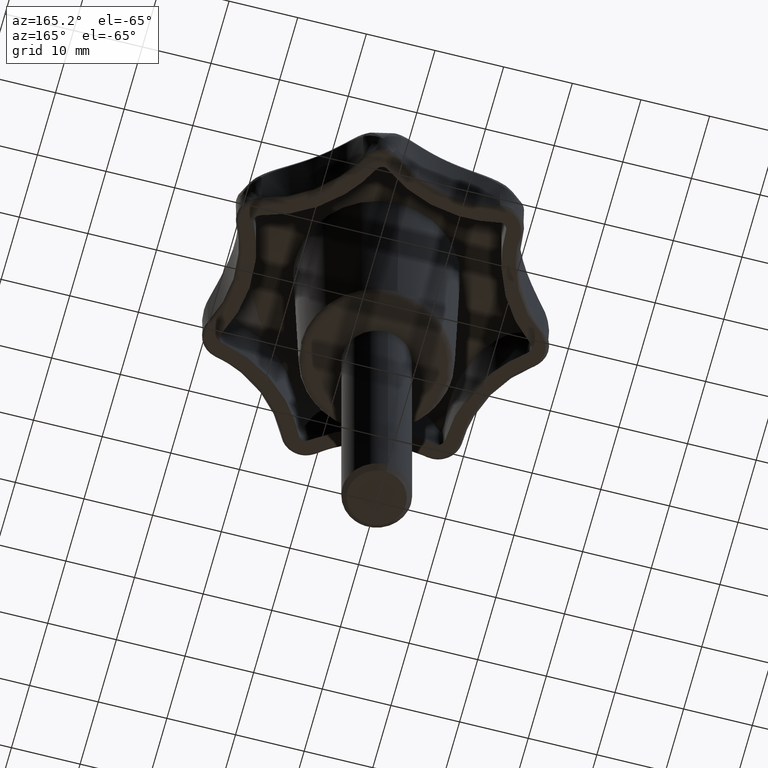
[diagram: clean part render]
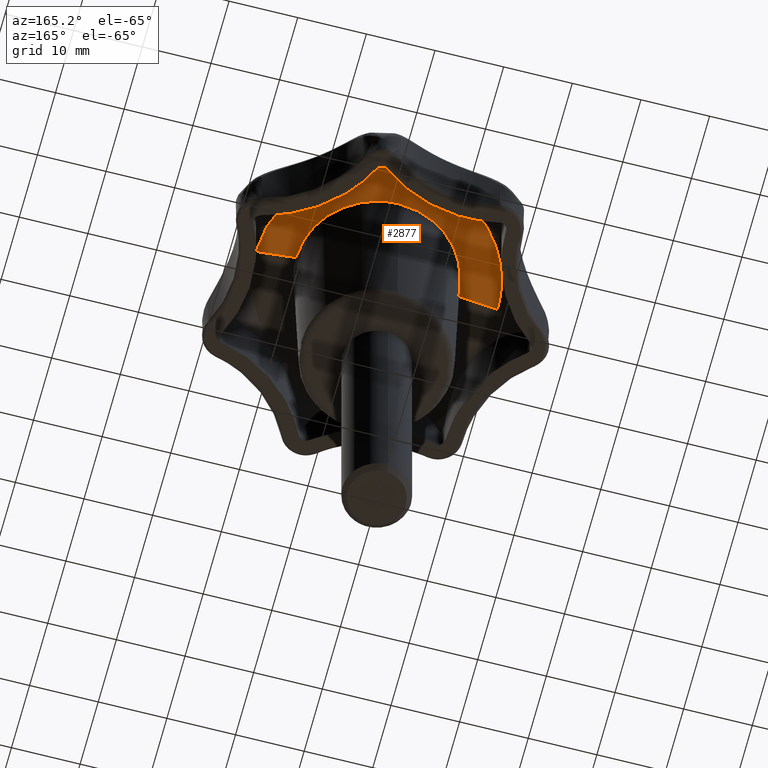
[diagram: same view with one face highlighted and labeled with its STEP entity id]
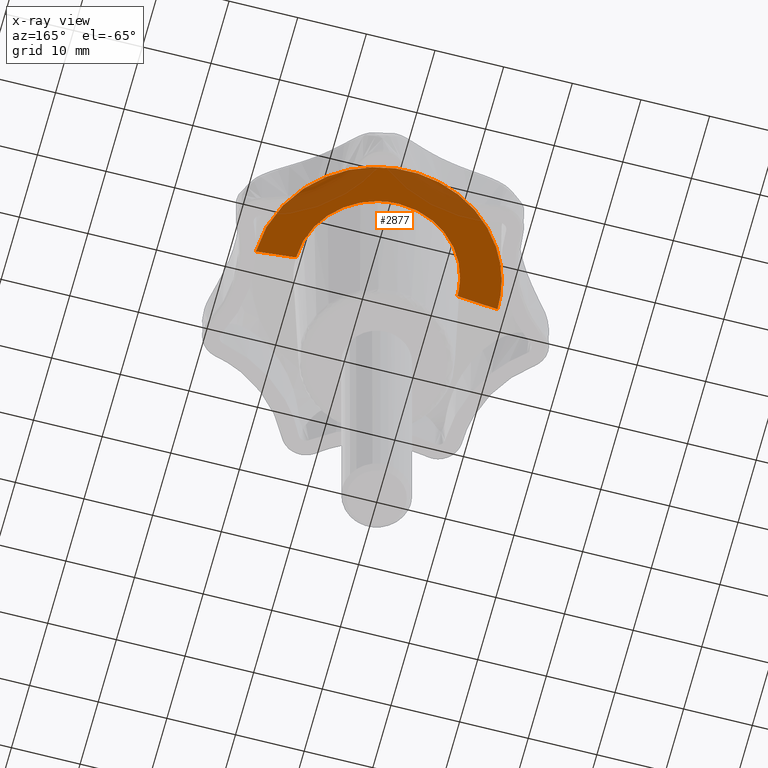
[diagram: x-ray of the same camera — body ghosted, the highlighted face saturated]
A machine part, auxiliary view. The second image highlights one B-rep face of the part: STEP entity #2877.
The next image is the same camera in x-ray: the body ghosted, the highlighted face saturated — about 29% of this face is hidden behind the body in this view.
In plain terms, the highlighted face is a freeform B-spline surface patch.
Its self-contained STEP definition (entity closure, byte-faithful):
#1056=CARTESIAN_POINT('',(-0.102533979538385,11.749729297891481,28.648124191833819));
#1057=VERTEX_POINT('',#1056);
#1063=CARTESIAN_POINT('',(11.750157794754040,0.0,28.648124470930838));
#1064=VERTEX_POINT('',#1063);
#1065=CARTESIAN_POINT('',(11.750157794754040,0.0,28.648124470930838));
#1066=CARTESIAN_POINT('',(11.750157794611022,11.750176655373723,28.648124332587464));
#1067=CARTESIAN_POINT('',(-1.989749E-010,11.750176671906820,28.648124193046218));
#1068=CARTESIAN_POINT('',(-0.051267965852437,11.750176671978963,28.648124192437368));
#1069=CARTESIAN_POINT('',(-0.102533979538385,11.749729297891479,28.648124191833816));
#1077=(BOUNDED_CURVE()B_SPLINE_CURVE(2,(#1065,#1066,#1067,#1068,#1069),.UNSPECIFIED.,.F.,.U.)B_SPLINE_CURVE_WITH_KNOTS((3,2,3),(0.500000000000000,0.750000000000000,0.751539831525140),.UNSPECIFIED.)CURVE()GEOMETRIC_REPRESENTATION_ITEM()RATIONAL_B_SPLINE_CURVE((1.0,0.707106781186547,1.0,0.998195975152686,0.996414173460028))REPRESENTATION_ITEM(''));
#1078=EDGE_CURVE('',#1064,#1057,#1077,.T.);
#1123=CARTESIAN_POINT('',(-11.750157794577399,0.0,28.648124470959232));
#1124=VERTEX_POINT('',#1123);
#1140=CARTESIAN_POINT('',(-0.102533979538385,11.749729297891479,28.648124191833816));
#1141=CARTESIAN_POINT('',(-11.750157794721675,11.648085998917605,28.648124331403327));
#1142=CARTESIAN_POINT('',(-11.750157794577399,0.0,28.648124470959232));
#1150=(BOUNDED_CURVE()B_SPLINE_CURVE(2,(#1140,#1141,#1142),.UNSPECIFIED.,.F.,.U.)B_SPLINE_CURVE_WITH_KNOTS((3,3),(0.751539831525140,1.0),.UNSPECIFIED.)CURVE()GEOMETRIC_REPRESENTATION_ITEM()RATIONAL_B_SPLINE_CURVE((0.996414173460028,0.708910806033862,1.0))REPRESENTATION_ITEM(''));
#1151=EDGE_CURVE('',#1057,#1124,#1150,.T.);
#2724=CARTESIAN_POINT('',(17.596958874370909,0.0,27.439747131504468));
#2725=VERTEX_POINT('',#2724);
#2726=CARTESIAN_POINT('',(17.596958874370909,0.0,27.439747131504465));
#2727=CARTESIAN_POINT('',(14.700417960583382,0.0,28.173897598160814));
#2728=CARTESIAN_POINT('',(11.750157794754042,0.0,28.648124470930835));
#2736=(BOUNDED_CURVE()B_SPLINE_CURVE(2,(#2726,#2727,#2728),.UNSPECIFIED.,.F.,.U.)B_SPLINE_CURVE_WITH_KNOTS((3,3),(0.915237493933738,0.943245607807053),.UNSPECIFIED.)CURVE()GEOMETRIC_REPRESENTATION_ITEM()RATIONAL_B_SPLINE_CURVE((0.948167060949897,0.953810472415407,0.961383716380284))REPRESENTATION_ITEM(''));
#2737=EDGE_CURVE('',#2725,#1064,#2736,.T.);
#2754=CARTESIAN_POINT('',(-17.596958874649530,0.0,27.439747131433869));
#2755=VERTEX_POINT('',#2754);
#2782=CARTESIAN_POINT('',(-17.596958874649534,0.0,27.439747131433869));
#2783=CARTESIAN_POINT('',(-14.700417960638672,0.0,28.173897598159996));
#2784=CARTESIAN_POINT('',(-11.750157794577399,0.0,28.648124470959218));
#2792=(BOUNDED_CURVE()B_SPLINE_CURVE(2,(#2782,#2783,#2784),.UNSPECIFIED.,.F.,.U.)B_SPLINE_CURVE_WITH_KNOTS((3,3),(0.915237493932399,0.943245607807898),.UNSPECIFIED.)CURVE()GEOMETRIC_REPRESENTATION_ITEM()RATIONAL_B_SPLINE_CURVE((0.948167060949357,0.953810472415215,0.961383716380741))REPRESENTATION_ITEM(''));
#2793=EDGE_CURVE('',#2755,#1124,#2792,.T.);
#2800=CARTESIAN_POINT('',(-17.887967260378893,-0.500089208538962,27.365296419266880));
#2801=CARTESIAN_POINT('',(-14.705365776727396,-0.411114053682798,28.187104801121599));
#2802=CARTESIAN_POINT('',(-11.457765379342986,-0.320321741245147,28.694463529376112));
#2803=CARTESIAN_POINT('',(-17.887967260378904,-0.251500801443757,27.365296419266890));
#2804=CARTESIAN_POINT('',(-14.705365776727396,-0.206754139502612,28.187104801121603));
#2805=CARTESIAN_POINT('',(-11.457765379342987,-0.161093607435318,28.694463529376112));
#2806=CARTESIAN_POINT('',(-17.887967260378876,17.887967260378890,27.365296419266876));
#2807=CARTESIAN_POINT('',(-14.705365776727366,14.705365776727394,28.187104801121581));
#2808=CARTESIAN_POINT('',(-11.457765379342955,11.457765379342987,28.694463529376094));
#2809=CARTESIAN_POINT('',(0.0,17.887967260378900,27.365296419266887));
#2810=CARTESIAN_POINT('',(0.0,14.705365776727394,28.187104801121603));
#2811=CARTESIAN_POINT('',(0.0,11.457765379342989,28.694463529376112));
#2812=CARTESIAN_POINT('',(17.887967260378890,17.887967260378876,27.365296419266876));
#2813=CARTESIAN_POINT('',(14.705365776727394,14.705365776727366,28.187104801121581));
#2814=CARTESIAN_POINT('',(11.457765379342987,11.457765379342955,28.694463529376094));
#2815=CARTESIAN_POINT('',(17.887967260378893,-0.251500801443756,27.365296419266890));
#2816=CARTESIAN_POINT('',(14.705365776727396,-0.206754139502611,28.187104801121603));
#2817=CARTESIAN_POINT('',(11.457765379342987,-0.161093607435317,28.694463529376112));
#2818=CARTESIAN_POINT('',(17.887967260378897,-0.500089208538959,27.365296419266883));
#2819=CARTESIAN_POINT('',(14.705365776727398,-0.411114053682796,28.187104801121603));
#2820=CARTESIAN_POINT('',(11.457765379342987,-0.320321741245145,28.694463529376115));
#2828=(BOUNDED_SURFACE()B_SPLINE_SURFACE(2,2,((#2800,#2803,#2806,#2809,#2812,#2815,#2818),(#2801,#2804,#2807,#2810,#2813,#2816,#2819),(#2802,#2805,#2808,#2811,#2814,#2817,#2820)),.UNSPECIFIED.,.F.,.F.,.U.)B_SPLINE_SURFACE_WITH_KNOTS((3,3),(3,1,2,1,3),(0.0,6.616311970302825),(0.0,0.592755091402788,30.230509661542129,59.868264231681472,60.461019323084258),.UNSPECIFIED.)GEOMETRIC_REPRESENTATION_ITEM()RATIONAL_B_SPLINE_SURFACE(((0.958710015710056,0.953159056000134,0.670060110794083,0.947608096290211,0.670060110794083,0.953159056000134,0.958710015710056),(0.964882655692730,0.959295956212401,0.674374282715630,0.953709256732072,0.674374282715630,0.959295956212401,0.964882655692730),(0.973417319077354,0.967781203640365,0.680339316353936,0.962145088203376,0.680339316353936,0.967781203640365,0.973417319077354)))REPRESENTATION_ITEM('')SURFACE());
#2829=ORIENTED_EDGE('',*,*,#2737,.T.);
#2830=ORIENTED_EDGE('',*,*,#1078,.T.);
#2831=ORIENTED_EDGE('',*,*,#1151,.T.);
#2832=ORIENTED_EDGE('',*,*,#2793,.F.);
#2833=CARTESIAN_POINT('',(-16.987782316843010,4.590017615514259,27.439746963456159));
#2834=VERTEX_POINT('',#2833);
#2835=CARTESIAN_POINT('',(-16.987782316843006,4.590017615514259,27.439746963456166));
#2836=CARTESIAN_POINT('',(-17.596958854443816,2.335433151743485,27.439747047444399));
#2837=CARTESIAN_POINT('',(-17.596958874649530,0.0,27.439747131433869));
#2845=(BOUNDED_CURVE()B_SPLINE_CURVE(2,(#2835,#2836,#2837),.UNSPECIFIED.,.F.,.U.)B_SPLINE_CURVE_WITH_KNOTS((3,3),(0.911044511148089,1.0),.UNSPECIFIED.)CURVE()GEOMETRIC_REPRESENTATION_ITEM()RATIONAL_B_SPLINE_CURVE((0.914323659581134,0.947891081078079,1.0))REPRESENTATION_ITEM(''));
#2846=EDGE_CURVE('',#2834,#2755,#2845,.T.);
#2847=ORIENTED_EDGE('',*,*,#2846,.F.);
#2848=CARTESIAN_POINT('',(17.596958874370909,0.0,27.439747131504468));
#2849=CARTESIAN_POINT('',(17.597002420914730,0.923097960693396,27.439747130919951));
#2850=CARTESIAN_POINT('',(17.441022807506080,2.901165185554827,27.439747128922122));
#2851=CARTESIAN_POINT('',(16.719898816875130,5.757569088680355,27.439747123669228));
#2852=CARTESIAN_POINT('',(15.684243154203870,8.084481037974664,27.439747117250370));
#2853=CARTESIAN_POINT('',(14.417803302357081,10.172562531865960,27.439747109880091));
#2854=CARTESIAN_POINT('',(13.079904179871290,11.855618715796870,27.439747102425461));
#2855=CARTESIAN_POINT('',(11.526249827005740,13.336443501105100,27.439747094068839));
#2856=CARTESIAN_POINT('',(9.727805414365172,14.733173117702361,27.439747084597180));
#2857=CARTESIAN_POINT('',(7.748125420794029,15.873396763003459,27.439747074421309));
#2858=CARTESIAN_POINT('',(5.257979788157259,16.849580989509331,27.439747061912659));
#2859=CARTESIAN_POINT('',(3.008743479445568,17.397023524006030,27.439747050827830));
#2860=CARTESIAN_POINT('',(0.839211000655650,17.610722014935622,27.439747040330719));
#2861=CARTESIAN_POINT('',(-1.536804969493999,17.590511589271241,27.439747028998699));
#2862=CARTESIAN_POINT('',(-3.993115632411108,17.221548431518041,27.439747017503649));
#2863=CARTESIAN_POINT('',(-6.727053359278489,16.330993021748888,27.439747005013359));
#2864=CARTESIAN_POINT('',(-8.974839624721829,15.206594131411871,27.439746994992468));
#2865=CARTESIAN_POINT('',(-10.792690817926781,13.943702706946320,27.439746987112329));
#2866=CARTESIAN_POINT('',(-12.409982500752919,12.534522237354709,27.439746980282461));
#2867=CARTESIAN_POINT('',(-13.741492587597120,11.064562094324099,27.439746974855790));
#2868=CARTESIAN_POINT('',(-14.955825501888929,9.335773777926642,27.439746970152420));
#2869=CARTESIAN_POINT('',(-16.091290275436599,7.284662106488682,27.439746966029841));
#2870=CARTESIAN_POINT('',(-16.704117395855270,5.640337787332483,27.439746964145531));
#2871=CARTESIAN_POINT('',(-16.987782316843010,4.590017615514259,27.439746963456159));
#2872=B_SPLINE_CURVE_WITH_KNOTS('',3,(#2848,#2849,#2850,#2851,#2852,#2853,#2854,#2855,#2856,#2857,#2858,#2859,#2860,#2861,#2862,#2863,#2864,#2865,#2866,#2867,#2868,#2869,#2870,#2871),.UNSPECIFIED.,.F.,.U.,(4,1,1,1,1,1,1,1,1,1,1,1,1,1,1,1,1,1,1,1,1,4),(0.000000041058271,2.769297103239580,5.934215782845946,8.802438166130891,10.384919412713240,13.253141788283051,15.231223869121720,16.813702336455851,20.077549470856141,22.055615654570389,24.824936964122699,27.000817004217261,28.583234457102140,31.945996442892319,34.418579063031302,37.187905051029901,39.462696691560573,41.045162497281339,43.616667852996557,45.396943170428450,47.375018965955960,50.638847707922849),.UNSPECIFIED.);
#2873=EDGE_CURVE('',#2725,#2834,#2872,.T.);
#2874=ORIENTED_EDGE('',*,*,#2873,.F.);
#2875=EDGE_LOOP('',(#2829,#2830,#2831,#2832,#2847,#2874));
#2876=FACE_OUTER_BOUND('',#2875,.T.);
#2877=ADVANCED_FACE('',(#2876),#2828,.F.);